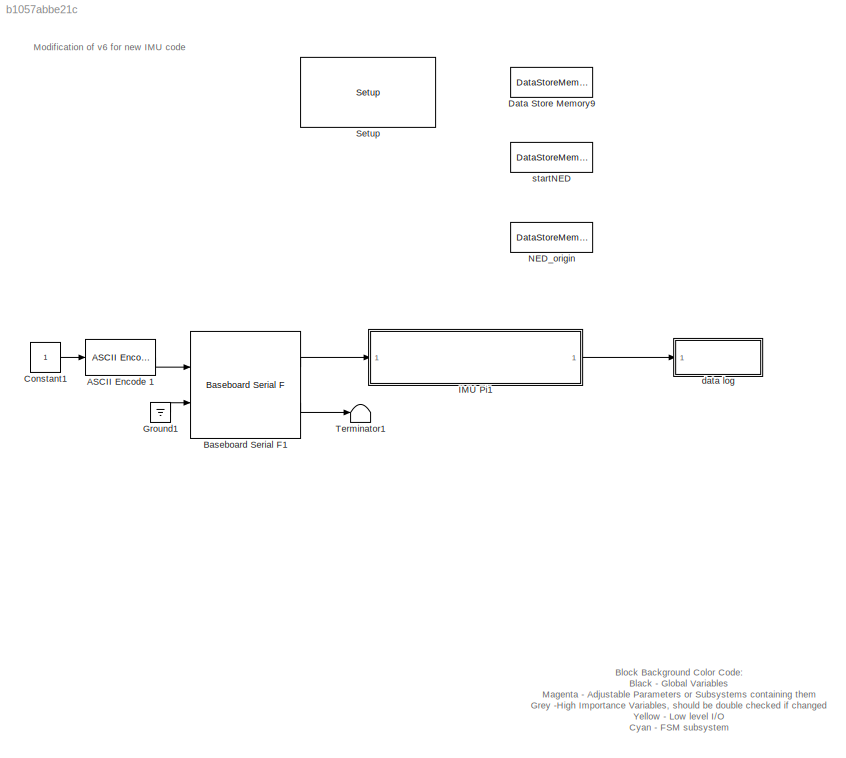
MODEL slx_b1057abbe21c
KIND model
BLOCK [Reference] ASCII Encode 1  REF=xpcseriallib/ASCII Encode 
  Ports = [1, 1]
  SourceBlock = xpcseriallib/ASCII Encode
  SourceType = ASCII Encode
  format = SGB:%d \r\n
  maxlength = 128
  nvars = 1
  vartypes = { 'double' }
BLOCK [Reference] Baseboard Serial F1  REF=xpcseriallib/Mainboard/Baseboard
Serial F
  Ports = [2, 2]
  SourceBlock = xpcseriallib/Mainboard/Baseboard\nSerial F
  SourceType = Baseboard RS232 Send Receive
  automode1 = on
  automode2 = on
  baud1 = 9600
  baud2 = 115200
  config = Com2/Com4
  fifomode1 = 64 deep
  fifomode2 = 64 deep
  group = Basic Setup
  irqnum = 4
  ndata1 = 7
  ndata2 = 7
  nstop1 = 1
  nstop2 = 1
  parity1 = Even
  parity2 = Even
  port = 1
  rcvfifosize1 = 1024
  rcvfifosize2 = 1024
  rlevel1 = 1
  rlevel2 = 1
  saddr1 = 0x3f8
  saddr2 = 0x3e8
  xmtdatatype1 = 8 bit uint null terminated
  xmtdatatype2 = 8 bit uint null terminated
  xmtfifosize1 = 1024
  xmtfifosize2 = 1024
BLOCK [Constant] Constant1
BLOCK [DataStoreMemory] Data Store Memory9
  DataStoreName = transWpt
  InitialValue = [4009.4964500000, 7532.95009000000]
  ReadBeforeWriteMsg = warning
  WriteAfterReadMsg = warning
  WriteAfterWriteMsg = warning
BLOCK [Ground] Ground1
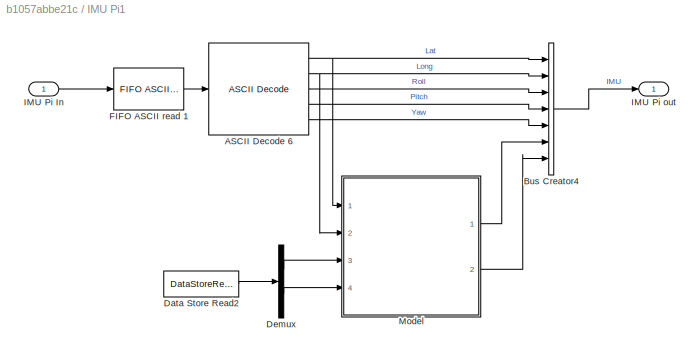
BLOCK [SubSystem] IMU Pi1
  Ports = [1, 1]
  RequestExecContextInheritance = off
BLOCK [Reference] IMU Pi1/ASCII Decode 6  REF=xpcseriallib/ASCII Decode 
  Ports = [1, 5]
  SourceBlock = xpcseriallib/ASCII Decode
  SourceType = ASCII Decode
  format = GPS Lat:%f Long:%f Roll:%f Pitch:%f Yaw:%f \r\n
  nvars = 5
  vartypes = {}
BLOCK [BusCreator] IMU Pi1/Bus Creator4
  DisplayOption = bar
  Inputs = 7
  Ports = [7, 1]
BLOCK [DataStoreRead] IMU Pi1/Data Store Read2
  DataStoreName = NED_origin
  Ports = [0, 1]
BLOCK [Demux] IMU Pi1/Demux
  DisplayOption = bar
  Outputs = 2
  Ports = [1, 2]
BLOCK [Reference] IMU Pi1/FIFO ASCII read 1  REF=xpcseriallib/FIFO ASCII read 
  Ports = [1, 1]
  SourceBlock = xpcseriallib/FIFO ASCII read
  SourceType = Asynchronous FIFO Block: reader
  enable = off
  header = {'GPS Lat:'}
  hold = Zero output if no new data
  maxsize = 1024
  outputtype = 8 bit uint null terminated
  sampletime = -1
  term = [13 10]
BLOCK [Inport] IMU Pi1/IMU Pi In
  IconDisplay = Port number
BLOCK [Outport] IMU Pi1/IMU Pi out
  IconDisplay = Port number
BLOCK [ModelReference] IMU Pi1/Model
  CopyOfModelName = LLA2NEDv6.slx
  DefaultDataLogging = on
  ModelNameDialog = LLA2NEDv6.slx
  ModelReferenceVersion = 1.2057
  Ports = [4, 2]
BLOCK [DataStoreMemory] NED_origin
  DataStoreName = NED_origin
  InitialValue = [40.1584510000000, -75.5492320000000]
  ReadBeforeWriteMsg = warning
  VectorParams1D = off
  WriteAfterReadMsg = warning
  WriteAfterWriteMsg = warning
BLOCK [Reference] Setup  REF=speedgoatlib_IO102/Setup
  Ports = []
  SourceBlock = speedgoatlib_IO102/Setup
  SourceType = setup_IO102
  adChannel = 16
  adChannelMode = Multiple-channel (enter number of channels below)
  adCoupling = Differential
  cal = off
  daChannel = [1,2,3,4]
  daInitValue = [0]
  daReset = [1]
  diChannel = [1,2,3,4,5,6,7,8]
  doChannel = [1,2,3,4,5,6,7,8]
  doInitValue = [0]
  doReset = [1]
  group = Digital output setup
  id = 1
  pciSlot = -1
  range = +-5V
BLOCK [Terminator] Terminator1
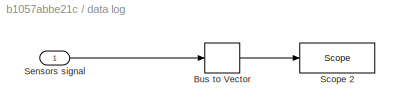
BLOCK [SubSystem] data log
  Ports = [1]
  RequestExecContextInheritance = off
BLOCK [BusToVector] data log/Bus to Vector
BLOCK [Reference] data log/Scope 2  REF=slrtlib/Displays and
Logging/Scope 
  Ports = [1]
  SourceBlock = slrtlib/Displays and\nLogging/Scope
  SourceType = xpcscopeblock
  autorestart = on
  autostart = on
  dynamicfilemode = on
  filename = IMU_<%%%>.dat
  formatstr = '%15.6f'
  grid = on
  interleave = 1
  maxwritefilesize = 512*1024^2
  mode = Commit
  noprepostsamples = 0
  nosamples = 250
  scopeno = 2
  scopetype = File
  triggerlevel = 0.0
  triggermode = FreeRun
  triggersample = 0
  triggerscope = 1
  triggersignal = 1
  triggerslope = Either
  trigsignalfromport = off
  viewmode = Graphical redraw
  writesize = 512
  ylimits = [0,0]
BLOCK [Inport] data log/Sensors signal
  IconDisplay = Port number
BLOCK [DataStoreMemory] startNED
  DataStoreName = startNED
  InitialValue = [10 10]
  ReadBeforeWriteMsg = warning
  VectorParams1D = off
  WriteAfterReadMsg = warning
  WriteAfterWriteMsg = warning
ANNOTATION (root): Block Background Color Code: Black - Global Variables Magenta - Adjustable Parameters or Subsystems containing them Grey -High Importance Variables, should be double checked if changed Yellow - Low level I/O Cyan - FSM subsystem Light Blue - Conditional Selector Block Dark Green - Task Enablers Orange - Output Selectors Green - Signal Bussing Blocks Red - Logic blocks. Determine signals for output...<+28ch>
ANNOTATION (root): Modification of v6 for new IMU code
LINE ASCII Encode 1:1 -> Baseboard Serial F1:1
LINE Baseboard Serial F1:1 -> IMU Pi1:1
LINE Baseboard Serial F1:2 -> Terminator1:1
LINE Constant1:1 -> ASCII Encode 1:1
LINE Ground1:1 -> Baseboard Serial F1:2
NET IMU Pi1/ASCII Decode 6:1 -> IMU Pi1/Bus Creator4:1, IMU Pi1/Model:1
NET IMU Pi1/ASCII Decode 6:2 -> IMU Pi1/Bus Creator4:2, IMU Pi1/Model:2
LINE IMU Pi1/ASCII Decode 6:3 -> IMU Pi1/Bus Creator4:3
LINE IMU Pi1/ASCII Decode 6:4 -> IMU Pi1/Bus Creator4:4
LINE IMU Pi1/ASCII Decode 6:5 -> IMU Pi1/Bus Creator4:5
LINE IMU Pi1/Bus Creator4:1 -> IMU Pi1/IMU Pi out:1
LINE IMU Pi1/Data Store Read2:1 -> IMU Pi1/Demux:1
LINE IMU Pi1/Demux:1 -> IMU Pi1/Model:3
LINE IMU Pi1/Demux:2 -> IMU Pi1/Model:4
LINE IMU Pi1/FIFO ASCII read 1:1 -> IMU Pi1/ASCII Decode 6:1
LINE IMU Pi1/IMU Pi In:1 -> IMU Pi1/FIFO ASCII read 1:1
LINE IMU Pi1/Model:1 -> IMU Pi1/Bus Creator4:6
LINE IMU Pi1/Model:2 -> IMU Pi1/Bus Creator4:7
LINE IMU Pi1:1 -> data log:1
LINE data log/Bus to Vector:1 -> data log/Scope 2:1
LINE data log/Sensors signal:1 -> data log/Bus to Vector:1
note: NET lines group one-source signal fan-out (src -> all destinations, sorted); 1:1 wires keep LINE
